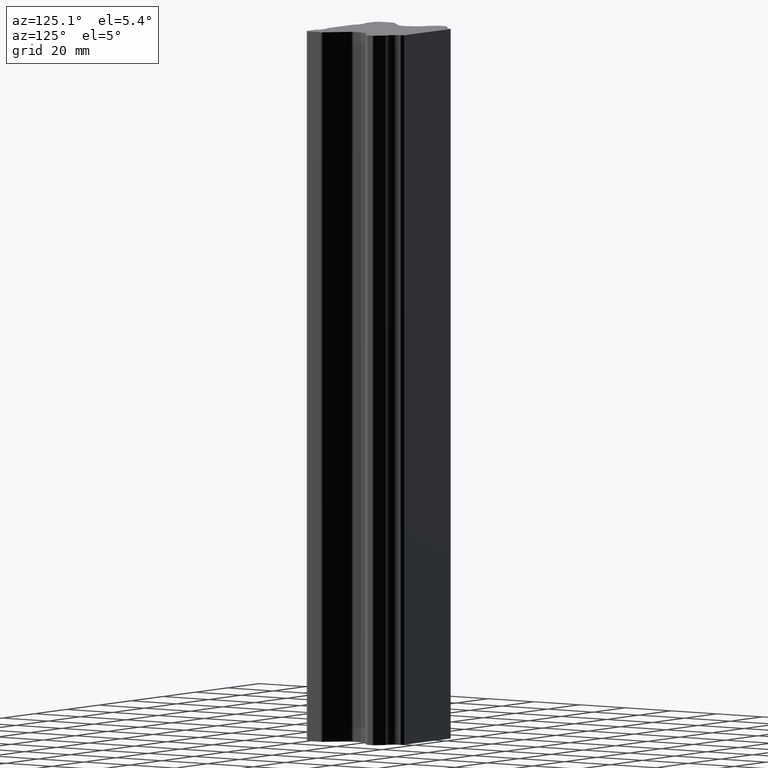
[diagram: clean part render]
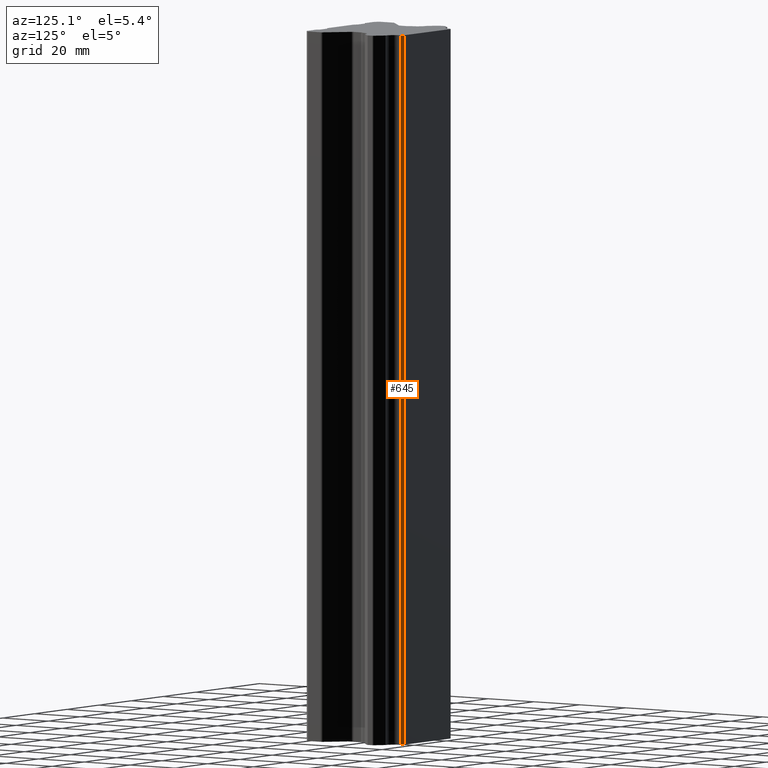
[diagram: same view with one face highlighted and labeled with its STEP entity id]
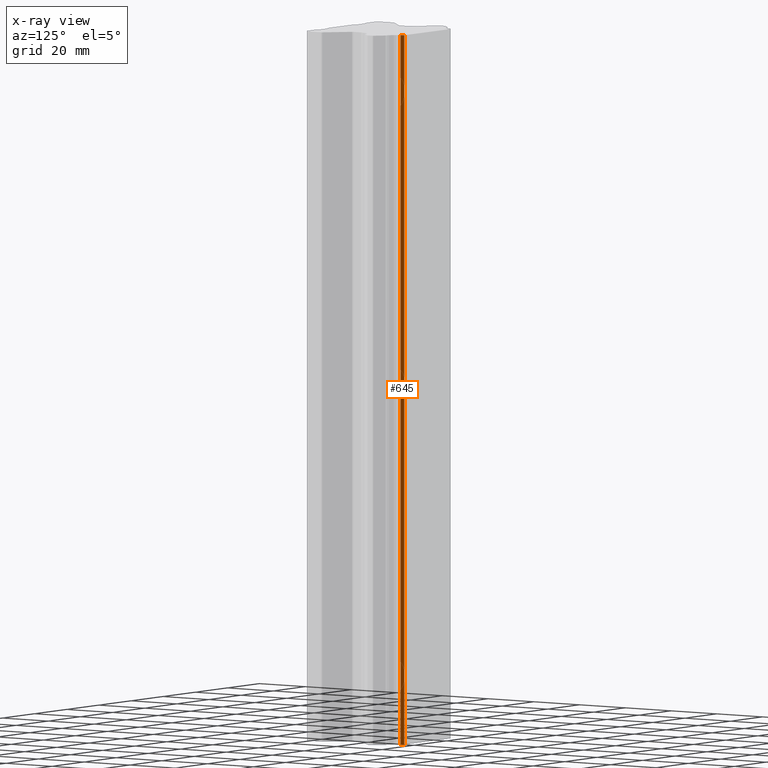
[diagram: x-ray of the same camera — body ghosted, the highlighted face saturated]
A machine part, auxiliary view. The second image highlights one B-rep face of the part: STEP entity #645.
The next image is the same camera in x-ray: the body ghosted, the highlighted face saturated — about 0% of this face is hidden behind the body in this view.
In plain terms, the highlighted planar face has unit normal (0.7071, 0.7071, 0).
Its self-contained STEP definition (entity closure, byte-faithful):
#17 = VERTEX_POINT ( 'NONE', #572 ) ;
#125 = VERTEX_POINT ( 'NONE', #844 ) ;
#342 = VERTEX_POINT ( 'NONE', #1295 ) ;
#351 = EDGE_CURVE ( 'NONE', #17, #125, #1366, .T. ) ;
#402 = EDGE_CURVE ( 'NONE', #125, #342, #1562, .T. ) ;
#572 = CARTESIAN_POINT ( 'NONE',  ( 14.40034900003966100, -5.507582996757715500E-013, 127.5000000000000000 ) ) ;
#584 = ORIENTED_EDGE ( 'NONE', *, *, #351, .T. ) ;
#597 = ORIENTED_EDGE ( 'NONE', *, *, #598, .T. ) ;
#598 = EDGE_CURVE ( 'NONE', #342, #599, #1620, .T. ) ;
#599 = VERTEX_POINT ( 'NONE', #1624 ) ;
#600 = ORIENTED_EDGE ( 'NONE', *, *, #675, .F. ) ;
#645 = ADVANCED_FACE ( 'NONE', ( #1613 ), #1612, .T. ) ;
#646 = EDGE_LOOP ( 'NONE', ( #647, #597, #600, #584 ) ) ;
#647 = ORIENTED_EDGE ( 'NONE', *, *, #402, .T. ) ;
#675 = EDGE_CURVE ( 'NONE', #17, #599, #1681, .T. ) ;
#844 = CARTESIAN_POINT ( 'NONE',  ( 15.33350785821720800, -0.9331588581790084500, 127.5000000000000000 ) ) ;
#1295 = CARTESIAN_POINT ( 'NONE',  ( 15.33350785821715900, -0.9331588581769063600, -127.5000000000000000 ) ) ;
#1365 = CARTESIAN_POINT ( 'NONE',  ( 15.33350785822000100, -0.9331588581818000000, 127.5000000000000000 ) ) ;
#1366 = LINE ( 'NONE', #1365, #1395 ) ;
#1394 = DIRECTION ( 'NONE',  ( 0.7071067811864976100, -0.7071067811865975300, 0.0000000000000000000 ) ) ;
#1395 = VECTOR ( 'NONE', #1394, 1000.000000000000100 ) ;
#1548 = DIRECTION ( 'NONE',  ( 0.0000000000000000000, 0.0000000000000000000, -1.000000000000000000 ) ) ;
#1549 = VECTOR ( 'NONE', #1548, 1000.000000000000000 ) ;
#1561 = CARTESIAN_POINT ( 'NONE',  ( 15.33350785821795100, -0.9331588581797497500, -127.5000000000000000 ) ) ;
#1562 = LINE ( 'NONE', #1561, #1549 ) ;
#1612 = PLANE ( 'NONE',  #1641 ) ;
#1613 = FACE_OUTER_BOUND ( 'NONE', #646, .T. ) ;
#1619 = CARTESIAN_POINT ( 'NONE',  ( 15.33350785822000100, -0.9331588581776999500, -127.5000000000000000 ) ) ;
#1620 = LINE ( 'NONE', #1619, #1626 ) ;
#1624 = CARTESIAN_POINT ( 'NONE',  ( 14.40034900003983900, -2.431848884911791400E-013, -127.5000000000000000 ) ) ;
#1625 = DIRECTION ( 'NONE',  ( -0.7071067811875605400, 0.7071067811855346100, 0.0000000000000000000 ) ) ;
#1626 = VECTOR ( 'NONE', #1625, 999.9999999999998900 ) ;
#1638 = DIRECTION ( 'NONE',  ( -0.7071067811864976100, 0.7071067811865975300, 0.0000000000000000000 ) ) ;
#1639 = DIRECTION ( 'NONE',  ( 0.7071067811865975300, 0.7071067811864976100, 0.0000000000000000000 ) ) ;
#1640 = CARTESIAN_POINT ( 'NONE',  ( 15.33350785822000100, -0.9331588581818000000, -127.5000000000000000 ) ) ;
#1641 = AXIS2_PLACEMENT_3D ( 'NONE', #1640, #1639, #1638 ) ;
#1681 = LINE ( 'NONE', #1730, #1729 ) ;
#1728 = DIRECTION ( 'NONE',  ( 0.0000000000000000000, 0.0000000000000000000, -1.000000000000000000 ) ) ;
#1729 = VECTOR ( 'NONE', #1728, 1000.000000000000000 ) ;
#1730 = CARTESIAN_POINT ( 'NONE',  ( 14.40034900004000000, -1.137000000000000100E-013, -127.5000000000000000 ) ) ;